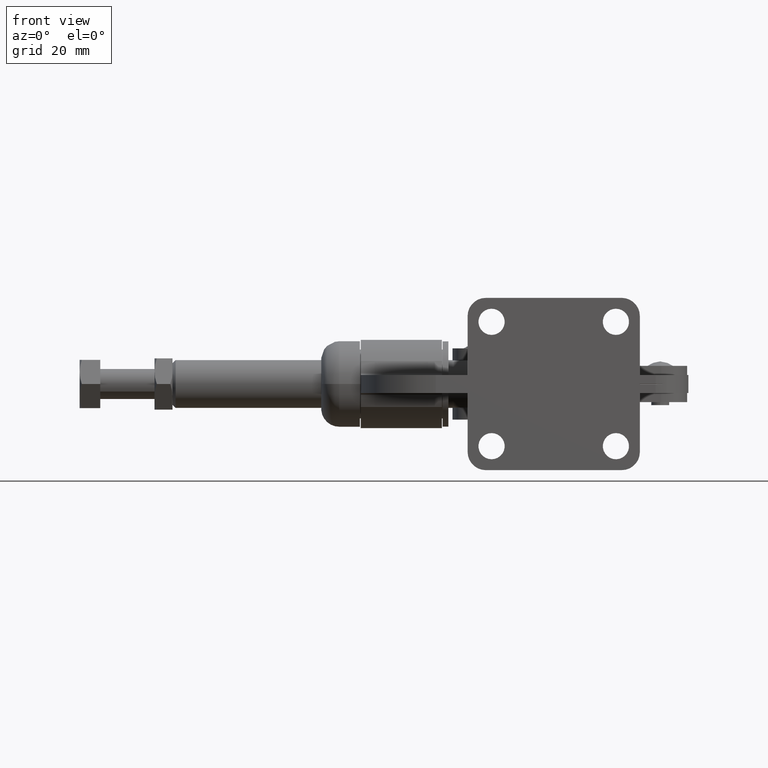
[diagram: clean part render]
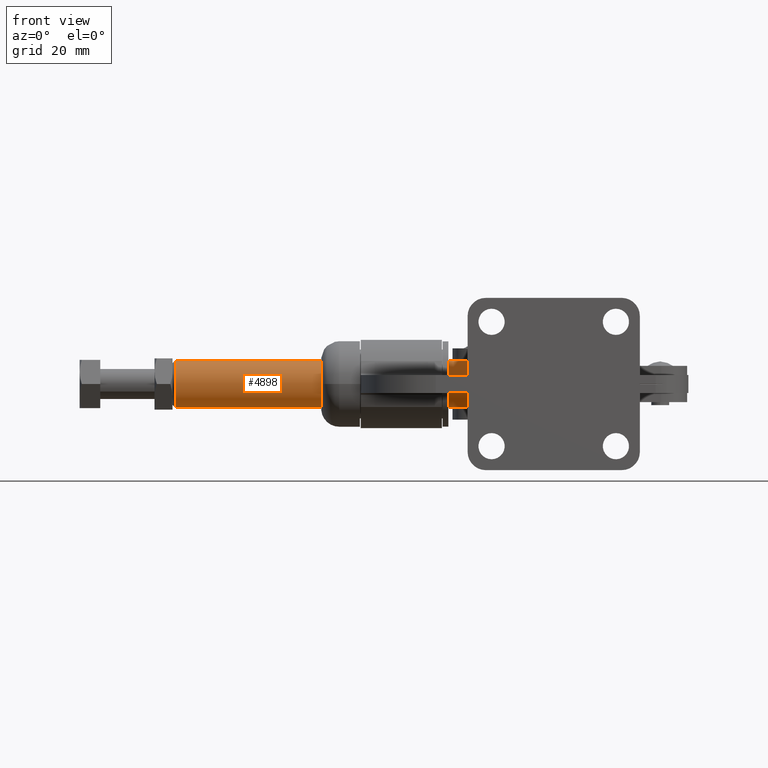
[diagram: same view with one face highlighted and labeled with its STEP entity id]
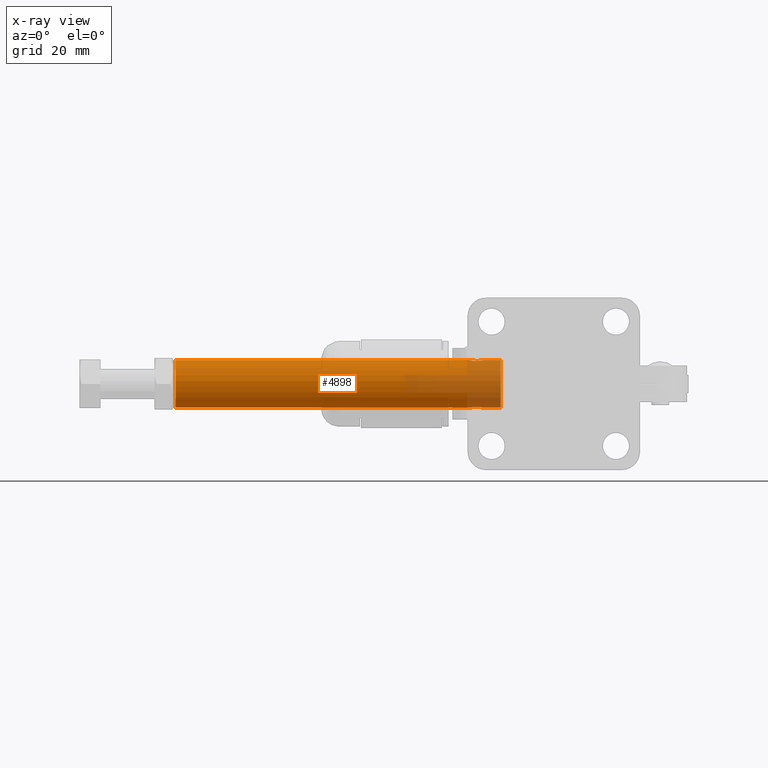
[diagram: x-ray of the same camera — body ghosted, the highlighted face saturated]
A machine part, front view. The second image highlights one B-rep face of the part: STEP entity #4898.
The next image is the same camera in x-ray: the body ghosted, the highlighted face saturated — about 17% of this face is hidden behind the body in this view.
In plain terms, the highlighted cylindrical surface (edge-blend (fillet) strip) has radius 7.925 mm, axis along (1, 0, 0).
Its self-contained STEP definition (entity closure, byte-faithful):
#10 = CARTESIAN_POINT ( 'NONE',  ( -70.61367683932225200, 39.24000940567165700, -7.624963320076907400 ) ) ;
#46 = CARTESIAN_POINT ( 'NONE',  ( -72.71209138750529600, 41.25457573125979100, -7.925000000000622400 ) ) ;
#211 = AXIS2_PLACEMENT_3D ( 'NONE', #6208, #1709, #6947 ) ;
#314 = CARTESIAN_POINT ( 'NONE',  ( -72.62592551425338200, 40.83113515351507800, 7.905809323640872900 ) ) ;
#351 = CARTESIAN_POINT ( 'NONE',  ( -70.18226046900774400, 39.25381249309520400, 7.628912872167425100 ) ) ;
#468 = CARTESIAN_POINT ( 'NONE',  ( -62.46971373799950600, 41.39999999999994200, -7.925000000000620700 ) ) ;
#656 = EDGE_CURVE ( 'NONE', #1463, #1637, #2712, .T. ) ;
#742 = VECTOR ( 'NONE', #918, 1000.000000000000000 ) ;
#745 = CARTESIAN_POINT ( 'NONE',  ( -68.55000199008844700, 40.30784045002795300, -7.850265597609325000 ) ) ;
#780 = CARTESIAN_POINT ( 'NONE',  ( -71.03987707046906100, 39.30865805759778200, -7.644130275911745500 ) ) ;
#918 = DIRECTION ( 'NONE',  ( 1.000000000000000000, 0.0000000000000000000, 0.0000000000000000000 ) ) ;
#1071 = CARTESIAN_POINT ( 'NONE',  ( -72.46186784665867700, 40.43436819317618400, 7.867047565502676100 ) ) ;
#1093 = FACE_OUTER_BOUND ( 'NONE', #1518, .T. ) ;
#1101 = CARTESIAN_POINT ( 'NONE',  ( -69.75979790613058600, 39.35013807199763400, 7.655505178707944200 ) ) ;
#1176 = CARTESIAN_POINT ( 'NONE',  ( -170.4497137379998400, 41.39999999999994200, -7.925000000000620700 ) ) ;
#1204 = DIRECTION ( 'NONE',  ( 1.000000000000000000, 0.0000000000000000000, 0.0000000000000000000 ) ) ;
#1378 = VERTEX_POINT ( 'NONE', #8344 ) ;
#1463 = VERTEX_POINT ( 'NONE', #4704 ) ;
#1483 = CARTESIAN_POINT ( 'NONE',  ( -68.80759915828723200, 39.96664957322117600, -7.794963562632292000 ) ) ;
#1511 = CARTESIAN_POINT ( 'NONE',  ( -71.57688897688237300, 39.51051689758243400, -7.697252616086680100 ) ) ;
#1518 = EDGE_LOOP ( 'NONE', ( #3421, #5752, #7143, #5917, #4078, #9148, #3518, #9596 ) ) ;
#1637 = VERTEX_POINT ( 'NONE', #468 ) ;
#1709 = DIRECTION ( 'NONE',  ( 1.000000000000000000, -0.0000000000000000000, -0.0000000000000000000 ) ) ;
#1809 = CARTESIAN_POINT ( 'NONE',  ( -72.22478125549763200, 40.07486663389818200, 7.814317043027650700 ) ) ;
#1846 = CARTESIAN_POINT ( 'NONE',  ( -69.11612686812314600, 39.67032895437962700, 7.736549411587271100 ) ) ;
#2037 = EDGE_CURVE ( 'NONE', #1463, #6184, #4654, .T. ) ;
#2171 = CARTESIAN_POINT ( 'NONE',  ( -68.22151445857643600, 41.39999999999994200, -7.925000000000620700 ) ) ;
#2242 = CARTESIAN_POINT ( 'NONE',  ( -69.12701140064038400, 39.67894619742850200, -7.736272594577609900 ) ) ;
#2273 = CARTESIAN_POINT ( 'NONE',  ( -72.13057227319595200, 39.96543310821432000, -7.794724810784280100 ) ) ;
#2567 = CARTESIAN_POINT ( 'NONE',  ( -71.82171815363773200, 39.66877023895723700, 7.736246185245386500 ) ) ;
#2601 = CARTESIAN_POINT ( 'NONE',  ( -68.53675482317012800, 40.30349960500151200, 7.853143351881388200 ) ) ;
#2712 = LINE ( 'NONE', #6153, #742 ) ;
#2750 = CARTESIAN_POINT ( 'NONE',  ( -193.8649987016133900, 41.39999999999994200, 7.924999999999379000 ) ) ;
#2759 = CARTESIAN_POINT ( 'NONE',  ( -62.46971373799950600, 41.39999999999994200, -6.210310043996969400E-013 ) ) ;
#2922 = CARTESIAN_POINT ( 'NONE',  ( -68.22726073171118300, 41.25645814310140500, -7.925000000000624200 ) ) ;
#2955 = VECTOR ( 'NONE', #5022, 1000.000000000000000 ) ;
#2987 = CARTESIAN_POINT ( 'NONE',  ( -69.49468296937807600, 39.45715314896440200, -7.683362377531196300 ) ) ;
#2990 = CIRCLE ( 'NONE', #5955, 7.924999999999999800 ) ;
#3015 = CARTESIAN_POINT ( 'NONE',  ( -72.39021996644821400, 40.30905921693536000, -7.850442947105591400 ) ) ;
#3305 = CARTESIAN_POINT ( 'NONE',  ( -71.17785433147845700, 39.34944797855337100, 7.655324460648221100 ) ) ;
#3342 = CARTESIAN_POINT ( 'NONE',  ( -68.31322102086507200, 40.83209146701624100, 7.905875420700800400 ) ) ;
#3421 = ORIENTED_EDGE ( 'NONE', *, *, #5120, .F. ) ;
#3499 = DIRECTION ( 'NONE',  ( 0.0000000000000000000, 0.0000000000000000000, -1.000000000000000000 ) ) ;
#3518 = ORIENTED_EDGE ( 'NONE', *, *, #3932, .F. ) ;
#3742 = CARTESIAN_POINT ( 'NONE',  ( -69.89827316186743600, 39.30904807671120000, -7.644236871944539900 ) ) ;
#3777 = CARTESIAN_POINT ( 'NONE',  ( -72.57896742005543400, 40.69371896952839100, -7.894556228732634300 ) ) ;
#3932 = EDGE_CURVE ( 'NONE', #8779, #9085, #6668, .T. ) ;
#3997 = CARTESIAN_POINT ( 'NONE',  ( -193.8649987016133900, 41.39999999999994200, -6.210310043996969400E-013 ) ) ;
#4043 = CARTESIAN_POINT ( 'NONE',  ( -72.71791301742325700, 41.39999999999994200, 7.924999999999379000 ) ) ;
#4075 = CARTESIAN_POINT ( 'NONE',  ( -70.75934798769425500, 39.25412890146173300, 7.629001875531926700 ) ) ;
#4078 = ORIENTED_EDGE ( 'NONE', *, *, #656, .T. ) ;
#4108 = CARTESIAN_POINT ( 'NONE',  ( -68.22730575290239600, 41.25533351410632600, 7.924999999999380800 ) ) ;
#4179 = CARTESIAN_POINT ( 'NONE',  ( -193.8649987016133900, 41.39999999999994200, -7.925000000000620700 ) ) ;
#4379 = EDGE_CURVE ( 'NONE', #6411, #8779, #8902, .T. ) ;
#4470 = CARTESIAN_POINT ( 'NONE',  ( -68.31347181414555800, 40.83137445078426000, -7.905815312581147200 ) ) ;
#4505 = CARTESIAN_POINT ( 'NONE',  ( -70.32604478950177900, 39.23999060394275800, -7.624957993920338200 ) ) ;
#4539 = CARTESIAN_POINT ( 'NONE',  ( -72.69237752323141400, 41.11193209434561900, -7.921002041529023400 ) ) ;
#4618 = CYLINDRICAL_SURFACE ( 'NONE', #5255, 7.924999999999999800 ) ;
#4654 = B_SPLINE_CURVE_WITH_KNOTS ( 'NONE', 3,
 ( #2171, #2922, #8976, #4470, #9722, #5238, #745, #5981, #1483, #6729, #2242, #7483, #2987, #8230, #3742, #9008, #4505, #10, #5274, #780, #6018, #1511, #6767, #2273, #7518, #3015, #8272, #3777, #9036, #4539, #46, #5298 ),
 .UNSPECIFIED., .F., .F.,
 ( 4, 2, 2, 2, 2, 2, 2, 2, 2, 2, 2, 2, 2, 2, 2, 4 ),
 ( 0.007256525164187986800, 0.007686795489578495500, 0.008117065814969003400, 0.008547336140359511300, 0.008977606465750021000, 0.009407876791140528900, 0.009838147116531036800, 0.01026841744192154500, 0.01069868776731205400, 0.01112895809270256200, 0.01155922841809307200, 0.01241976906887408800, 0.01285003939426461800, 0.01328030971965514900, 0.01371058004504567900, 0.01414085037043620900 ),
 .UNSPECIFIED. ) ;
#4683 = VECTOR ( 'NONE', #8481, 1000.000000000000000 ) ;
#4704 = CARTESIAN_POINT ( 'NONE',  ( -68.22151445857643600, 41.39999999999994200, -7.925000000000620700 ) ) ;
#4795 = CARTESIAN_POINT ( 'NONE',  ( -72.69245935633043100, 41.11217196215704200, 7.921021606836125000 ) ) ;
#4824 = CARTESIAN_POINT ( 'NONE',  ( -70.32503318289431600, 39.24001418723165800, 7.624964674596682800 ) ) ;
#4860 = EDGE_CURVE ( 'NONE', #1378, #8762, #9546, .T. ) ;
#4898 = ADVANCED_FACE ( 'NONE', ( #1093 ), #4618, .T. ) ;
#4955 = LINE ( 'NONE', #2750, #2955 ) ;
#5022 = DIRECTION ( 'NONE',  ( 1.000000000000000000, 0.0000000000000000000, 0.0000000000000000000 ) ) ;
#5120 = EDGE_CURVE ( 'NONE', #1378, #6411, #4955, .T. ) ;
#5127 = VECTOR ( 'NONE', #1204, 1000.000000000000000 ) ;
#5238 = CARTESIAN_POINT ( 'NONE',  ( -68.47792431531488000, 40.43360428944985300, -7.866962215631786200 ) ) ;
#5255 = AXIS2_PLACEMENT_3D ( 'NONE', #3997, #9246, #8502 ) ;
#5274 = CARTESIAN_POINT ( 'NONE',  ( -70.75644615079252700, 39.25368083252199400, -7.628876249257015000 ) ) ;
#5298 = CARTESIAN_POINT ( 'NONE',  ( -72.71791301742325700, 41.39999999999994200, -7.925000000000620700 ) ) ;
#5560 = CARTESIAN_POINT ( 'NONE',  ( -72.57969646397283700, 40.69563899874172100, 7.894729746111498700 ) ) ;
#5594 = CARTESIAN_POINT ( 'NONE',  ( -69.90002484606088700, 39.30857420151573200, 7.644106916792209100 ) ) ;
#5698 = CARTESIAN_POINT ( 'NONE',  ( -68.22151445857643600, 41.39999999999994200, 7.924999999999379000 ) ) ;
#5752 = ORIENTED_EDGE ( 'NONE', *, *, #4860, .T. ) ;
#5917 = ORIENTED_EDGE ( 'NONE', *, *, #2037, .F. ) ;
#5955 = AXIS2_PLACEMENT_3D ( 'NONE', #2759, #7999, #3499 ) ;
#5981 = CARTESIAN_POINT ( 'NONE',  ( -68.71443069734020500, 40.07515872132889700, -7.814363571138264900 ) ) ;
#6018 = CARTESIAN_POINT ( 'NONE',  ( -71.17932783865492800, 39.35005364115393400, -7.655481678732221500 ) ) ;
#6153 = CARTESIAN_POINT ( 'NONE',  ( -193.8649987016133900, 41.39999999999994200, -7.925000000000620700 ) ) ;
#6184 = VERTEX_POINT ( 'NONE', #8180 ) ;
#6208 = CARTESIAN_POINT ( 'NONE',  ( -170.4497137379998400, 41.39999999999994200, -6.210310043996969400E-013 ) ) ;
#6216 = CARTESIAN_POINT ( 'NONE',  ( -193.8649987016133900, 41.39999999999994200, 7.924999999999379000 ) ) ;
#6314 = CARTESIAN_POINT ( 'NONE',  ( -72.38950560133587000, 40.30794093366726100, 7.850282560682074100 ) ) ;
#6344 = CARTESIAN_POINT ( 'NONE',  ( -69.36162445053609800, 39.51096074621505500, 7.697365104896496400 ) ) ;
#6411 = VERTEX_POINT ( 'NONE', #7055 ) ;
#6668 = LINE ( 'NONE', #6216, #4683 ) ;
#6729 = CARTESIAN_POINT ( 'NONE',  ( -69.01527576125505400, 39.76726044607347200, -7.755650323329171600 ) ) ;
#6767 = CARTESIAN_POINT ( 'NONE',  ( -71.82256517328077900, 39.66974888547986900, -7.736421928264181100 ) ) ;
#6855 = CARTESIAN_POINT ( 'NONE',  ( -62.46971373799950600, 41.39999999999994200, 7.924999999999379000 ) ) ;
#6947 = DIRECTION ( 'NONE',  ( 0.0000000000000000000, 0.0000000000000000000, 1.000000000000000000 ) ) ;
#7052 = CARTESIAN_POINT ( 'NONE',  ( -72.13201060873842600, 39.96689706219986200, 7.795004817235359000 ) ) ;
#7055 = CARTESIAN_POINT ( 'NONE',  ( -72.71791301742325700, 41.39999999999994200, 7.924999999999379000 ) ) ;
#7083 = CARTESIAN_POINT ( 'NONE',  ( -68.70588351977536900, 40.06441131813905100, 7.814228151063517200 ) ) ;
#7143 = ORIENTED_EDGE ( 'NONE', *, *, #8778, .T. ) ;
#7341 = LINE ( 'NONE', #4179, #5127 ) ;
#7483 = CARTESIAN_POINT ( 'NONE',  ( -69.36597416201307500, 39.52416063958427400, -7.700205616921763900 ) ) ;
#7518 = CARTESIAN_POINT ( 'NONE',  ( -72.22518916697929100, 40.07533702781768900, -7.814401721695828600 ) ) ;
#7815 = CARTESIAN_POINT ( 'NONE',  ( -71.58027466978330700, 39.51190529968737100, 7.697613147236632300 ) ) ;
#7842 = CARTESIAN_POINT ( 'NONE',  ( -68.36036733404185400, 40.69403449412238400, 7.894578827262497700 ) ) ;
#7999 = DIRECTION ( 'NONE',  ( -1.000000000000000000, 0.0000000000000000000, 0.0000000000000000000 ) ) ;
#8180 = CARTESIAN_POINT ( 'NONE',  ( -72.71791301742325700, 41.39999999999994200, -7.925000000000620700 ) ) ;
#8230 = CARTESIAN_POINT ( 'NONE',  ( -69.76122306251767200, 39.34962800376214200, -7.655369748619875700 ) ) ;
#8272 = CARTESIAN_POINT ( 'NONE',  ( -72.46097274568829500, 40.43269108626972000, -7.866839543809397200 ) ) ;
#8344 = CARTESIAN_POINT ( 'NONE',  ( -170.4497137379998400, 41.39999999999994200, 7.924999999999379000 ) ) ;
#8481 = DIRECTION ( 'NONE',  ( 1.000000000000000000, 0.0000000000000000000, 0.0000000000000000000 ) ) ;
#8502 = DIRECTION ( 'NONE',  ( 0.0000000000000000000, 0.0000000000000000000, -1.000000000000000000 ) ) ;
#8579 = CARTESIAN_POINT ( 'NONE',  ( -71.04047339959704700, 39.30888996688192100, 7.644193300656678700 ) ) ;
#8607 = CARTESIAN_POINT ( 'NONE',  ( -68.24686680684573000, 41.11283160592775900, 7.921042897429779300 ) ) ;
#8762 = VERTEX_POINT ( 'NONE', #1176 ) ;
#8778 = EDGE_CURVE ( 'NONE', #8762, #6184, #7341, .T. ) ;
#8779 = VERTEX_POINT ( 'NONE', #5698 ) ;
#8902 = B_SPLINE_CURVE_WITH_KNOTS ( 'NONE', 3,
 ( #4043, #9296, #4795, #314, #5560, #1071, #6314, #1809, #7052, #2567, #7815, #3305, #8579, #4075, #9324, #4824, #351, #5594, #1101, #6344, #1846, #7083, #2601, #7842, #3342, #8607, #4108, #9356 ),
 .UNSPECIFIED., .F., .F.,
 ( 4, 2, 2, 2, 2, 2, 2, 2, 2, 2, 2, 2, 2, 4 ),
 ( 0.007166302097174039900, 0.007596614856568436600, 0.008026927615962834200, 0.008457240375357231000, 0.008887553134751627700, 0.009748178653540435000, 0.01017849141293484400, 0.01060880417232925100, 0.01103911693172365800, 0.01146942969111806500, 0.01233005520990685000, 0.01319068072869563500, 0.01362099348809002800, 0.01405130624748442100 ),
 .UNSPECIFIED. ) ;
#8976 = CARTESIAN_POINT ( 'NONE',  ( -68.24718406869928300, 41.11114815911043500, -7.920973133768230300 ) ) ;
#9008 = CARTESIAN_POINT ( 'NONE',  ( -70.17999192638011200, 39.25412055431885200, -7.628999849554642100 ) ) ;
#9036 = CARTESIAN_POINT ( 'NONE',  ( -72.62618279442051500, 40.83211638402693900, -7.905869000867929800 ) ) ;
#9085 = VERTEX_POINT ( 'NONE', #6855 ) ;
#9148 = ORIENTED_EDGE ( 'NONE', *, *, #9404, .T. ) ;
#9246 = DIRECTION ( 'NONE',  ( 1.000000000000000000, 0.0000000000000000000, 0.0000000000000000000 ) ) ;
#9296 = CARTESIAN_POINT ( 'NONE',  ( -72.71217557783380400, 41.25667880499184300, 7.924999999999380800 ) ) ;
#9324 = CARTESIAN_POINT ( 'NONE',  ( -70.61395269060916700, 39.23998583443689400, 7.624956642812770200 ) ) ;
#9356 = CARTESIAN_POINT ( 'NONE',  ( -68.22151445857643600, 41.39999999999994200, 7.924999999999379000 ) ) ;
#9404 = EDGE_CURVE ( 'NONE', #1637, #9085, #2990, .T. ) ;
#9546 = CIRCLE ( 'NONE', #211, 7.924999999999999800 ) ;
#9596 = ORIENTED_EDGE ( 'NONE', *, *, #4379, .F. ) ;
#9722 = CARTESIAN_POINT ( 'NONE',  ( -68.35960266366473100, 40.69587894149763200, -7.894759572432931800 ) ) ;